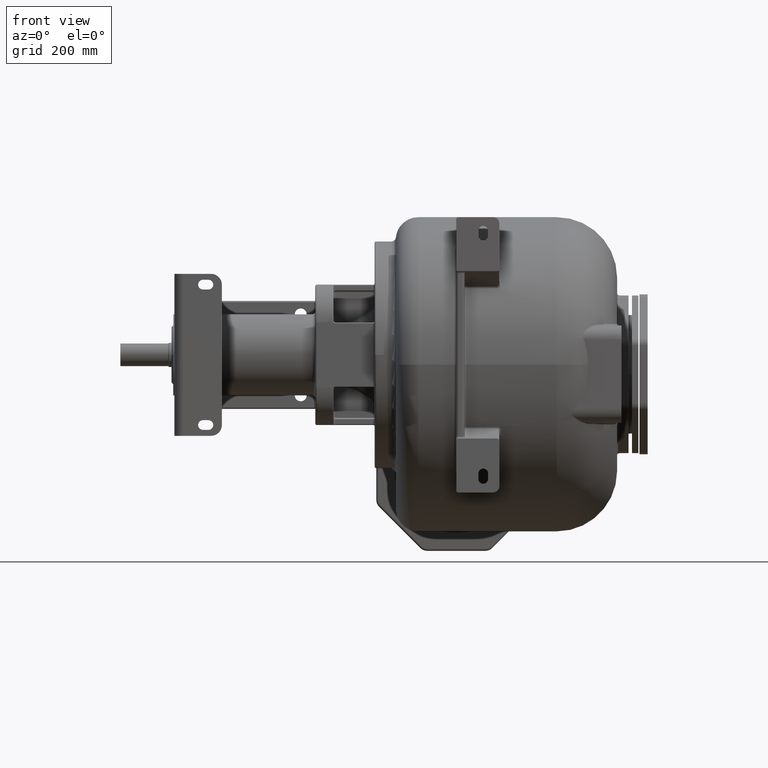
[diagram: clean part render]
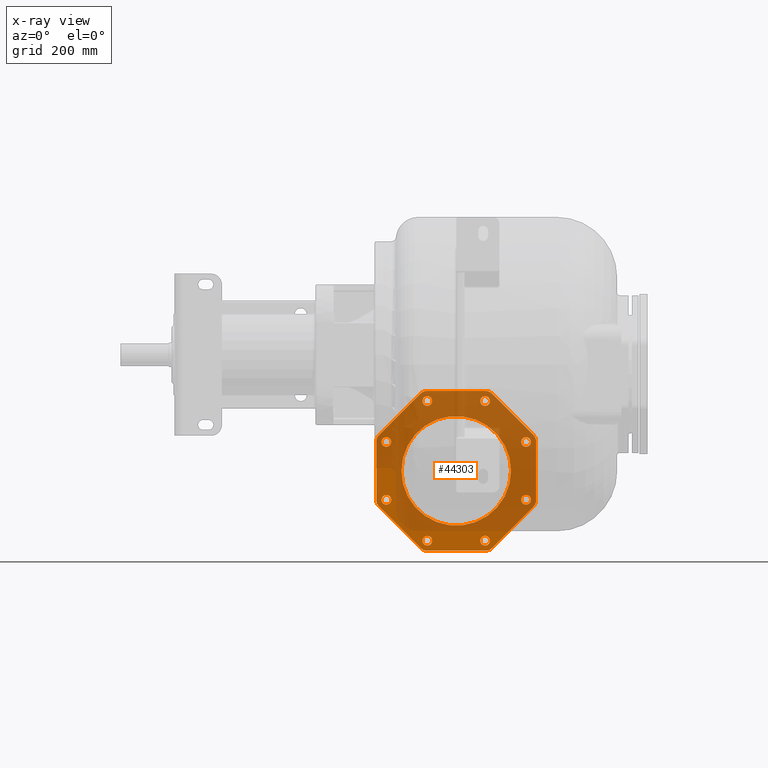
[diagram: x-ray — body ghosted, one internal face saturated and labeled with its STEP entity id]
A machine part, front view, then the same camera in x-ray: the body is ghosted and one INTERNAL B-rep face — a face not visible from any outside direction — is saturated and labeled: STEP entity #44303.
In plain terms, the highlighted planar face has unit normal (0, 1, 0).
Its self-contained STEP definition (entity closure, byte-faithful):
#43520=CARTESIAN_POINT('',(-1.038477631085E2,6.92E2,-8.5E1));
#43521=DIRECTION('',(0.E0,-1.E0,0.E0));
#43522=DIRECTION('',(0.E0,0.E0,1.E0));
#43523=AXIS2_PLACEMENT_3D('',#43520,#43521,#43522);
#43525=DIRECTION('',(-1.E0,0.E0,0.E0));
#43526=VECTOR('',#43525,1.076955262170E2);
#43527=CARTESIAN_POINT('',(3.847763108502E0,6.92E2,-6.7E1));
#43528=LINE('',#43527,#43526);
#43529=CARTESIAN_POINT('',(3.847763108502E0,6.92E2,-8.5E1));
#43530=DIRECTION('',(0.E0,-1.E0,0.E0));
#43531=DIRECTION('',(7.071067811865E-1,0.E0,7.071067811865E-1));
#43532=AXIS2_PLACEMENT_3D('',#43529,#43530,#43531);
#43534=DIRECTION('',(-7.071067811865E-1,0.E0,7.071067811865E-1));
#43535=VECTOR('',#43534,1.076955262170E2);
#43536=CARTESIAN_POINT('',(9.272792206136E1,6.92E2,-1.484243148301E2));
#43537=LINE('',#43536,#43535);
#43538=CARTESIAN_POINT('',(8.E1,6.92E2,-1.611522368915E2));
#43539=DIRECTION('',(0.E0,-1.E0,0.E0));
#43540=DIRECTION('',(1.E0,0.E0,0.E0));
#43541=AXIS2_PLACEMENT_3D('',#43538,#43539,#43540);
#43543=DIRECTION('',(0.E0,0.E0,1.E0));
#43544=VECTOR('',#43543,1.076955262170E2);
#43545=CARTESIAN_POINT('',(9.8E1,6.92E2,-2.688477631085E2));
#43546=LINE('',#43545,#43544);
#43547=CARTESIAN_POINT('',(8.E1,6.92E2,-2.688477631085E2));
#43548=DIRECTION('',(0.E0,-1.E0,0.E0));
#43549=DIRECTION('',(7.071067811865E-1,0.E0,-7.071067811865E-1));
#43550=AXIS2_PLACEMENT_3D('',#43547,#43548,#43549);
#43552=DIRECTION('',(7.071067811865E-1,0.E0,7.071067811865E-1));
#43553=VECTOR('',#43552,1.076955262170E2);
#43554=CARTESIAN_POINT('',(1.657568516986E1,6.92E2,-3.577279220614E2));
#43555=LINE('',#43554,#43553);
#43556=CARTESIAN_POINT('',(3.847763108502E0,6.92E2,-3.45E2));
#43557=DIRECTION('',(0.E0,-1.E0,0.E0));
#43558=DIRECTION('',(0.E0,0.E0,-1.E0));
#43559=AXIS2_PLACEMENT_3D('',#43556,#43557,#43558);
#43561=DIRECTION('',(1.E0,0.E0,0.E0));
#43562=VECTOR('',#43561,1.076955262170E2);
#43563=CARTESIAN_POINT('',(-1.038477631085E2,6.92E2,-3.63E2));
#43564=LINE('',#43563,#43562);
#43565=CARTESIAN_POINT('',(-1.038477631085E2,6.92E2,-3.45E2));
#43566=DIRECTION('',(0.E0,-1.E0,0.E0));
#43567=DIRECTION('',(-7.071067811865E-1,0.E0,-7.071067811865E-1));
#43568=AXIS2_PLACEMENT_3D('',#43565,#43566,#43567);
#43570=DIRECTION('',(7.071067811865E-1,0.E0,-7.071067811865E-1));
#43571=VECTOR('',#43570,1.076955262170E2);
#43572=CARTESIAN_POINT('',(-1.927279220614E2,6.92E2,-2.815756851699E2));
#43573=LINE('',#43572,#43571);
#43574=CARTESIAN_POINT('',(-1.8E2,6.92E2,-2.688477631085E2));
#43575=DIRECTION('',(0.E0,-1.E0,0.E0));
#43576=DIRECTION('',(-1.E0,0.E0,0.E0));
#43577=AXIS2_PLACEMENT_3D('',#43574,#43575,#43576);
#43579=DIRECTION('',(0.E0,0.E0,-1.E0));
#43580=VECTOR('',#43579,1.076955262170E2);
#43581=CARTESIAN_POINT('',(-1.98E2,6.92E2,-1.611522368915E2));
#43582=LINE('',#43581,#43580);
#43583=CARTESIAN_POINT('',(-1.8E2,6.92E2,-1.611522368915E2));
#43584=DIRECTION('',(0.E0,-1.E0,0.E0));
#43585=DIRECTION('',(-7.071067811865E-1,0.E0,7.071067811865E-1));
#43586=AXIS2_PLACEMENT_3D('',#43583,#43584,#43585);
#43588=DIRECTION('',(-7.071067811865E-1,0.E0,-7.071067811865E-1));
#43589=VECTOR('',#43588,1.076955262170E2);
#43590=CARTESIAN_POINT('',(-1.165756851699E2,6.92E2,-7.227207793864E1));
#43591=LINE('',#43590,#43589);
#43592=CARTESIAN_POINT('',(-5.E1,6.92E2,-2.15E2));
#43593=DIRECTION('',(0.E0,-1.E0,0.E0));
#43594=DIRECTION('',(1.E0,0.E0,0.E0));
#43595=AXIS2_PLACEMENT_3D('',#43592,#43593,#43594);
#43597=CARTESIAN_POINT('',(-5.E1,6.92E2,-2.15E2));
#43598=DIRECTION('',(0.E0,-1.E0,0.E0));
#43599=DIRECTION('',(-1.E0,0.E0,0.E0));
#43600=AXIS2_PLACEMENT_3D('',#43597,#43598,#43599);
#43602=CARTESIAN_POINT('',(3.575680531113E0,6.92E2,-3.443431345516E2));
#43603=DIRECTION('',(0.E0,1.E0,0.E0));
#43604=DIRECTION('',(-1.E0,0.E0,0.E0));
#43605=AXIS2_PLACEMENT_3D('',#43602,#43603,#43604);
#43607=CARTESIAN_POINT('',(3.575680531113E0,6.92E2,-3.443431345516E2));
#43608=DIRECTION('',(0.E0,1.E0,0.E0));
#43609=DIRECTION('',(1.E0,0.E0,0.E0));
#43610=AXIS2_PLACEMENT_3D('',#43607,#43608,#43609);
#43612=CARTESIAN_POINT('',(7.934313455158E1,6.92E2,-2.685756805311E2));
#43613=DIRECTION('',(0.E0,1.E0,0.E0));
#43614=DIRECTION('',(-7.071067811865E-1,0.E0,-7.071067811866E-1));
#43615=AXIS2_PLACEMENT_3D('',#43612,#43613,#43614);
#43617=CARTESIAN_POINT('',(7.934313455158E1,6.92E2,-2.685756805311E2));
#43618=DIRECTION('',(0.E0,1.E0,0.E0));
#43619=DIRECTION('',(7.071067811865E-1,0.E0,7.071067811865E-1));
#43620=AXIS2_PLACEMENT_3D('',#43617,#43618,#43619);
#43622=CARTESIAN_POINT('',(7.934313455158E1,6.92E2,-1.614243194689E2));
#43623=DIRECTION('',(0.E0,1.E0,0.E0));
#43624=DIRECTION('',(0.E0,0.E0,-1.E0));
#43625=AXIS2_PLACEMENT_3D('',#43622,#43623,#43624);
#43627=CARTESIAN_POINT('',(7.934313455158E1,6.92E2,-1.614243194689E2));
#43628=DIRECTION('',(0.E0,1.E0,0.E0));
#43629=DIRECTION('',(0.E0,0.E0,1.E0));
#43630=AXIS2_PLACEMENT_3D('',#43627,#43628,#43629);
#43632=CARTESIAN_POINT('',(3.575680531113E0,6.92E2,-8.565686544842E1));
#43633=DIRECTION('',(0.E0,1.E0,0.E0));
#43634=DIRECTION('',(7.071067811865E-1,0.E0,-7.071067811865E-1));
#43635=AXIS2_PLACEMENT_3D('',#43632,#43633,#43634);
#43637=CARTESIAN_POINT('',(3.575680531113E0,6.92E2,-8.565686544842E1));
#43638=DIRECTION('',(0.E0,1.E0,0.E0));
#43639=DIRECTION('',(-7.071067811865E-1,0.E0,7.071067811865E-1));
#43640=AXIS2_PLACEMENT_3D('',#43637,#43638,#43639);
#43642=CARTESIAN_POINT('',(-1.035756805311E2,6.92E2,-8.565686544842E1));
#43643=DIRECTION('',(0.E0,1.E0,0.E0));
#43644=DIRECTION('',(1.E0,0.E0,0.E0));
#43645=AXIS2_PLACEMENT_3D('',#43642,#43643,#43644);
#43647=CARTESIAN_POINT('',(-1.035756805311E2,6.92E2,-8.565686544842E1));
#43648=DIRECTION('',(0.E0,1.E0,0.E0));
#43649=DIRECTION('',(-1.E0,0.E0,0.E0));
#43650=AXIS2_PLACEMENT_3D('',#43647,#43648,#43649);
#43652=CARTESIAN_POINT('',(-1.793431345516E2,6.92E2,-1.614243194689E2));
#43653=DIRECTION('',(0.E0,1.E0,0.E0));
#43654=DIRECTION('',(7.071067811865E-1,0.E0,7.071067811865E-1));
#43655=AXIS2_PLACEMENT_3D('',#43652,#43653,#43654);
#43657=CARTESIAN_POINT('',(-1.793431345516E2,6.92E2,-1.614243194689E2));
#43658=DIRECTION('',(0.E0,1.E0,0.E0));
#43659=DIRECTION('',(-7.071067811865E-1,0.E0,-7.071067811865E-1));
#43660=AXIS2_PLACEMENT_3D('',#43657,#43658,#43659);
#43662=CARTESIAN_POINT('',(-1.793431345516E2,6.92E2,-2.685756805311E2));
#43663=DIRECTION('',(0.E0,1.E0,0.E0));
#43664=DIRECTION('',(0.E0,0.E0,1.E0));
#43665=AXIS2_PLACEMENT_3D('',#43662,#43663,#43664);
#43667=CARTESIAN_POINT('',(-1.793431345516E2,6.92E2,-2.685756805311E2));
#43668=DIRECTION('',(0.E0,1.E0,0.E0));
#43669=DIRECTION('',(0.E0,0.E0,-1.E0));
#43670=AXIS2_PLACEMENT_3D('',#43667,#43668,#43669);
#43672=CARTESIAN_POINT('',(-1.035756805311E2,6.92E2,-3.443431345516E2));
#43673=DIRECTION('',(0.E0,1.E0,0.E0));
#43674=DIRECTION('',(-7.071067811865E-1,0.E0,7.071067811865E-1));
#43675=AXIS2_PLACEMENT_3D('',#43672,#43673,#43674);
#43677=CARTESIAN_POINT('',(-1.035756805311E2,6.92E2,-3.443431345516E2));
#43678=DIRECTION('',(0.E0,1.E0,0.E0));
#43679=DIRECTION('',(7.071067811865E-1,0.E0,-7.071067811865E-1));
#43680=AXIS2_PLACEMENT_3D('',#43677,#43678,#43679);
#43746=CARTESIAN_POINT('',(-5.424319468887E0,6.92E2,-3.443431345516E2));
#43748=VERTEX_POINT('',#43746);
#43750=CARTESIAN_POINT('',(1.257568053111E1,6.92E2,-3.443431345516E2));
#43752=VERTEX_POINT('',#43750);
#43754=CARTESIAN_POINT('',(7.297917352090E1,6.92E2,-2.749396415618E2));
#43756=VERTEX_POINT('',#43754);
#43758=CARTESIAN_POINT('',(8.570709558226E1,6.92E2,-2.622117195004E2));
#43760=VERTEX_POINT('',#43758);
#43762=CARTESIAN_POINT('',(7.934313455158E1,6.92E2,-1.704243194689E2));
#43764=VERTEX_POINT('',#43762);
#43766=CARTESIAN_POINT('',(7.934313455158E1,6.92E2,-1.524243194689E2));
#43768=VERTEX_POINT('',#43766);
#43770=CARTESIAN_POINT('',(9.939641561791E0,6.92E2,-9.202082647910E1));
#43772=VERTEX_POINT('',#43770);
#43774=CARTESIAN_POINT('',(-2.788280499566E0,6.92E2,-7.929290441774E1));
#43776=VERTEX_POINT('',#43774);
#43778=CARTESIAN_POINT('',(-9.457568053111E1,6.92E2,-8.565686544842E1));
#43780=VERTEX_POINT('',#43778);
#43782=CARTESIAN_POINT('',(-1.125756805311E2,6.92E2,-8.565686544842E1));
#43784=VERTEX_POINT('',#43782);
#43786=CARTESIAN_POINT('',(-1.729791735209E2,6.92E2,-1.550603584382E2));
#43788=VERTEX_POINT('',#43786);
#43790=CARTESIAN_POINT('',(-1.857070955823E2,6.92E2,-1.677882804996E2));
#43792=VERTEX_POINT('',#43790);
#43794=CARTESIAN_POINT('',(5.15E1,6.92E2,-2.15E2));
#43795=CARTESIAN_POINT('',(-1.515E2,6.92E2,-2.15E2));
#43796=VERTEX_POINT('',#43794);
#43797=VERTEX_POINT('',#43795);
#43806=CARTESIAN_POINT('',(-1.038477631085E2,6.92E2,-6.7E1));
#43807=VERTEX_POINT('',#43806);
#43808=CARTESIAN_POINT('',(-1.165756851699E2,6.92E2,-7.227207793864E1));
#43809=VERTEX_POINT('',#43808);
#43814=CARTESIAN_POINT('',(-1.927279220614E2,6.92E2,-1.484243148301E2));
#43815=VERTEX_POINT('',#43814);
#43816=CARTESIAN_POINT('',(-1.98E2,6.92E2,-1.611522368915E2));
#43817=VERTEX_POINT('',#43816);
#43822=CARTESIAN_POINT('',(-1.98E2,6.92E2,-2.688477631085E2));
#43823=VERTEX_POINT('',#43822);
#43824=CARTESIAN_POINT('',(-1.927279220614E2,6.92E2,-2.815756851699E2));
#43825=VERTEX_POINT('',#43824);
#43830=CARTESIAN_POINT('',(-1.165756851699E2,6.92E2,-3.577279220614E2));
#43831=VERTEX_POINT('',#43830);
#43832=CARTESIAN_POINT('',(-1.038477631085E2,6.92E2,-3.63E2));
#43833=VERTEX_POINT('',#43832);
#43838=CARTESIAN_POINT('',(3.847763108502E0,6.92E2,-3.63E2));
#43839=VERTEX_POINT('',#43838);
#43840=CARTESIAN_POINT('',(1.657568516986E1,6.92E2,-3.577279220614E2));
#43841=VERTEX_POINT('',#43840);
#43846=CARTESIAN_POINT('',(9.272792206136E1,6.92E2,-2.815756851699E2));
#43847=VERTEX_POINT('',#43846);
#43848=CARTESIAN_POINT('',(9.8E1,6.92E2,-2.688477631085E2));
#43849=VERTEX_POINT('',#43848);
#43854=CARTESIAN_POINT('',(9.8E1,6.92E2,-1.611522368915E2));
#43855=VERTEX_POINT('',#43854);
#43856=CARTESIAN_POINT('',(9.272792206136E1,6.92E2,-1.484243148301E2));
#43857=VERTEX_POINT('',#43856);
#43862=CARTESIAN_POINT('',(1.657568516986E1,6.92E2,-7.227207793864E1));
#43863=VERTEX_POINT('',#43862);
#43864=CARTESIAN_POINT('',(3.847763108502E0,6.92E2,-6.7E1));
#43865=VERTEX_POINT('',#43864);
#43866=CARTESIAN_POINT('',(-1.793431345516E2,6.92E2,-2.595756805311E2));
#43867=CARTESIAN_POINT('',(-1.793431345516E2,6.92E2,-2.775756805311E2));
#43868=VERTEX_POINT('',#43866);
#43869=VERTEX_POINT('',#43867);
#43874=CARTESIAN_POINT('',(-1.099396415618E2,6.92E2,-3.379791735209E2));
#43875=CARTESIAN_POINT('',(-9.721171950043E1,6.92E2,-3.507070955823E2));
#43876=VERTEX_POINT('',#43874);
#43877=VERTEX_POINT('',#43875);
#44228=CARTESIAN_POINT('',(-5.E1,6.92E2,-2.15E2));
#44229=DIRECTION('',(0.E0,1.E0,0.E0));
#44230=DIRECTION('',(1.E0,0.E0,0.E0));
#44231=AXIS2_PLACEMENT_3D('',#44228,#44229,#44230);
#44232=PLANE('',#44231);
#44233=ORIENTED_EDGE('',*,*,#44012,.F.);
#44234=ORIENTED_EDGE('',*,*,#44028,.F.);
#44235=ORIENTED_EDGE('',*,*,#44041,.F.);
#44236=ORIENTED_EDGE('',*,*,#44054,.F.);
#44237=ORIENTED_EDGE('',*,*,#44069,.F.);
#44238=ORIENTED_EDGE('',*,*,#44082,.F.);
#44239=ORIENTED_EDGE('',*,*,#44097,.F.);
#44240=ORIENTED_EDGE('',*,*,#44110,.F.);
#44241=ORIENTED_EDGE('',*,*,#44125,.F.);
#44242=ORIENTED_EDGE('',*,*,#44138,.F.);
#44243=ORIENTED_EDGE('',*,*,#44153,.F.);
#44244=ORIENTED_EDGE('',*,*,#44166,.F.);
#44245=ORIENTED_EDGE('',*,*,#44181,.F.);
#44246=ORIENTED_EDGE('',*,*,#44194,.F.);
#44247=ORIENTED_EDGE('',*,*,#44209,.F.);
#44248=ORIENTED_EDGE('',*,*,#44221,.F.);
#44249=EDGE_LOOP('',(#44233,#44234,#44235,#44236,#44237,#44238,#44239,#44240,
#44241,#44242,#44243,#44244,#44245,#44246,#44247,#44248));
#44250=FACE_OUTER_BOUND('',#44249,.F.);
#44252=ORIENTED_EDGE('',*,*,#44251,.T.);
#44254=ORIENTED_EDGE('',*,*,#44253,.T.);
#44255=EDGE_LOOP('',(#44252,#44254));
#44256=FACE_BOUND('',#44255,.F.);
#44258=ORIENTED_EDGE('',*,*,#44257,.F.);
#44260=ORIENTED_EDGE('',*,*,#44259,.F.);
#44261=EDGE_LOOP('',(#44258,#44260));
#44262=FACE_BOUND('',#44261,.F.);
#44264=ORIENTED_EDGE('',*,*,#44263,.F.);
#44266=ORIENTED_EDGE('',*,*,#44265,.F.);
#44267=EDGE_LOOP('',(#44264,#44266));
#44268=FACE_BOUND('',#44267,.F.);
#44270=ORIENTED_EDGE('',*,*,#44269,.F.);
#44272=ORIENTED_EDGE('',*,*,#44271,.F.);
#44273=EDGE_LOOP('',(#44270,#44272));
#44274=FACE_BOUND('',#44273,.F.);
#44276=ORIENTED_EDGE('',*,*,#44275,.F.);
#44278=ORIENTED_EDGE('',*,*,#44277,.F.);
#44279=EDGE_LOOP('',(#44276,#44278));
#44280=FACE_BOUND('',#44279,.F.);
#44282=ORIENTED_EDGE('',*,*,#44281,.F.);
#44284=ORIENTED_EDGE('',*,*,#44283,.F.);
#44285=EDGE_LOOP('',(#44282,#44284));
#44286=FACE_BOUND('',#44285,.F.);
#44287=ORIENTED_EDGE('',*,*,#43889,.F.);
#44288=ORIENTED_EDGE('',*,*,#43907,.F.);
#44289=EDGE_LOOP('',(#44287,#44288));
#44290=FACE_BOUND('',#44289,.F.);
#44292=ORIENTED_EDGE('',*,*,#44291,.F.);
#44294=ORIENTED_EDGE('',*,*,#44293,.F.);
#44295=EDGE_LOOP('',(#44292,#44294));
#44296=FACE_BOUND('',#44295,.F.);
#44298=ORIENTED_EDGE('',*,*,#44297,.F.);
#44300=ORIENTED_EDGE('',*,*,#44299,.F.);
#44301=EDGE_LOOP('',(#44298,#44300));
#44302=FACE_BOUND('',#44301,.F.);
#44303=ADVANCED_FACE('',(#44250,#44256,#44262,#44268,#44274,#44280,#44286,
#44290,#44296,#44302),#44232,.F.);
#43524=CIRCLE('',#43523,1.8E1);
#43533=CIRCLE('',#43532,1.8E1);
#43542=CIRCLE('',#43541,1.8E1);
#43551=CIRCLE('',#43550,1.8E1);
#43560=CIRCLE('',#43559,1.8E1);
#43569=CIRCLE('',#43568,1.8E1);
#43578=CIRCLE('',#43577,1.8E1);
#43587=CIRCLE('',#43586,1.8E1);
#43596=CIRCLE('',#43595,1.015E2);
#43601=CIRCLE('',#43600,1.015E2);
#43606=CIRCLE('',#43605,9.E0);
#43611=CIRCLE('',#43610,9.E0);
#43616=CIRCLE('',#43615,9.E0);
#43621=CIRCLE('',#43620,9.E0);
#43626=CIRCLE('',#43625,9.E0);
#43631=CIRCLE('',#43630,9.E0);
#43636=CIRCLE('',#43635,9.E0);
#43641=CIRCLE('',#43640,9.E0);
#43646=CIRCLE('',#43645,9.E0);
#43651=CIRCLE('',#43650,9.E0);
#43656=CIRCLE('',#43655,9.E0);
#43661=CIRCLE('',#43660,9.E0);
#43666=CIRCLE('',#43665,9.E0);
#43671=CIRCLE('',#43670,9.E0);
#43676=CIRCLE('',#43675,9.E0);
#43681=CIRCLE('',#43680,9.E0);
#43889=EDGE_CURVE('',#43788,#43792,#43656,.T.);
#43907=EDGE_CURVE('',#43792,#43788,#43661,.T.);
#44012=EDGE_CURVE('',#43807,#43809,#43524,.T.);
#44028=EDGE_CURVE('',#43865,#43807,#43528,.T.);
#44041=EDGE_CURVE('',#43863,#43865,#43533,.T.);
#44054=EDGE_CURVE('',#43857,#43863,#43537,.T.);
#44069=EDGE_CURVE('',#43855,#43857,#43542,.T.);
#44082=EDGE_CURVE('',#43849,#43855,#43546,.T.);
#44097=EDGE_CURVE('',#43847,#43849,#43551,.T.);
#44110=EDGE_CURVE('',#43841,#43847,#43555,.T.);
#44125=EDGE_CURVE('',#43839,#43841,#43560,.T.);
#44138=EDGE_CURVE('',#43833,#43839,#43564,.T.);
#44153=EDGE_CURVE('',#43831,#43833,#43569,.T.);
#44166=EDGE_CURVE('',#43825,#43831,#43573,.T.);
#44181=EDGE_CURVE('',#43823,#43825,#43578,.T.);
#44194=EDGE_CURVE('',#43817,#43823,#43582,.T.);
#44209=EDGE_CURVE('',#43815,#43817,#43587,.T.);
#44221=EDGE_CURVE('',#43809,#43815,#43591,.T.);
#44251=EDGE_CURVE('',#43796,#43797,#43596,.T.);
#44253=EDGE_CURVE('',#43797,#43796,#43601,.T.);
#44257=EDGE_CURVE('',#43748,#43752,#43606,.T.);
#44259=EDGE_CURVE('',#43752,#43748,#43611,.T.);
#44263=EDGE_CURVE('',#43756,#43760,#43616,.T.);
#44265=EDGE_CURVE('',#43760,#43756,#43621,.T.);
#44269=EDGE_CURVE('',#43764,#43768,#43626,.T.);
#44271=EDGE_CURVE('',#43768,#43764,#43631,.T.);
#44275=EDGE_CURVE('',#43772,#43776,#43636,.T.);
#44277=EDGE_CURVE('',#43776,#43772,#43641,.T.);
#44281=EDGE_CURVE('',#43780,#43784,#43646,.T.);
#44283=EDGE_CURVE('',#43784,#43780,#43651,.T.);
#44291=EDGE_CURVE('',#43868,#43869,#43666,.T.);
#44293=EDGE_CURVE('',#43869,#43868,#43671,.T.);
#44297=EDGE_CURVE('',#43876,#43877,#43676,.T.);
#44299=EDGE_CURVE('',#43877,#43876,#43681,.T.);